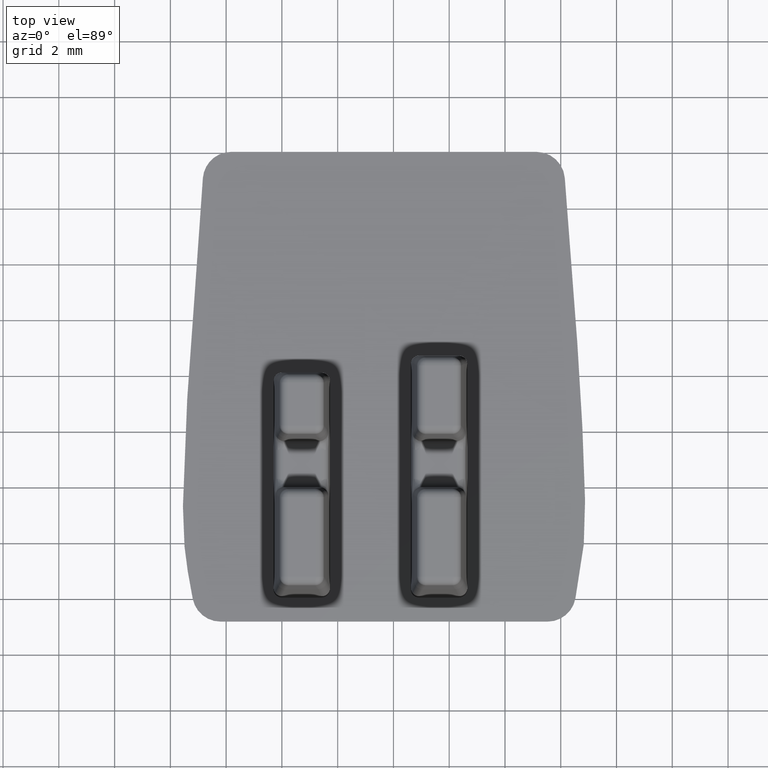
[diagram: clean part render]
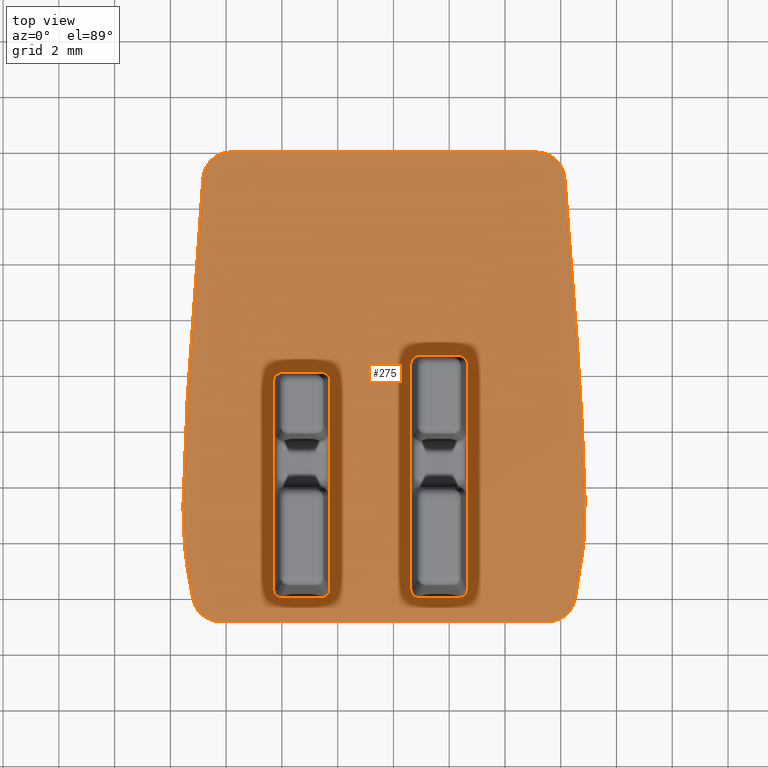
[diagram: same view with one face highlighted and labeled with its STEP entity id]
A machine part, top view. The second image highlights one B-rep face of the part: STEP entity #275.
In plain terms, the highlighted planar face has unit normal (0, 0, 1).
Its self-contained STEP definition (entity closure, byte-faithful):
#275 = ADVANCED_FACE ( 'NONE', ( #3682, #3700, #3684 ), #3679, .T. ) ;
#458 = EDGE_CURVE ( 'NONE', #3324, #3343, #5034, .T. ) ;
#462 = EDGE_CURVE ( 'NONE', #3326, #3351, #838, .T. ) ;
#463 = EDGE_CURVE ( 'NONE', #3373, #3345, #829, .T. ) ;
#465 = EDGE_CURVE ( 'NONE', #3368, #3372, #5041, .T. ) ;
#467 = EDGE_CURVE ( 'NONE', #3377, #3351, #5069, .T. ) ;
#471 = EDGE_CURVE ( 'NONE', #3334, #3353, #5042, .T. ) ;
#472 = EDGE_CURVE ( 'NONE', #3326, #3373, #5094, .T. ) ;
#473 = EDGE_CURVE ( 'NONE', #3338, #3374, #5043, .T. ) ;
#474 = EDGE_CURVE ( 'NONE', #3393, #3346, #5065, .T. ) ;
#476 = EDGE_CURVE ( 'NONE', #3324, #3358, #858, .T. ) ;
#478 = EDGE_CURVE ( 'NONE', #3377, #3360, #888, .T. ) ;
#479 = EDGE_CURVE ( 'NONE', #3325, #3340, #868, .T. ) ;
#480 = EDGE_CURVE ( 'NONE', #3345, #3325, #5048, .T. ) ;
#481 = EDGE_CURVE ( 'NONE', #3374, #3334, #875, .T. ) ;
#482 = EDGE_CURVE ( 'NONE', #3372, #3393, #854, .T. ) ;
#483 = EDGE_CURVE ( 'NONE', #3355, #3414, #865, .T. ) ;
#484 = EDGE_CURVE ( 'NONE', #3346, #3338, #536, .T. ) ;
#487 = EDGE_CURVE ( 'NONE', #3340, #3360, #5037, .T. ) ;
#488 = EDGE_CURVE ( 'NONE', #3339, #3343, #990, .T. ) ;
#490 = EDGE_CURVE ( 'NONE', #3394, #3368, #531, .T. ) ;
#491 = EDGE_CURVE ( 'NONE', #3323, #3359, #1026, .T. ) ;
#495 = EDGE_CURVE ( 'NONE', #3323, #3358, #5086, .T. ) ;
#496 = EDGE_CURVE ( 'NONE', #3414, #3359, #5077, .T. ) ;
#497 = EDGE_CURVE ( 'NONE', #3339, #3355, #5045, .T. ) ;
#498 = EDGE_CURVE ( 'NONE', #3353, #3394, #1045, .T. ) ;
#531 = B_SPLINE_CURVE_WITH_KNOTS ( 'NONE', 3,
 ( #1000, #971, #969, #1012, #966, #973, #1013, #1014, #986, #980, #992, #993, #1001, #972, #999, #1005, #1003, #1004, #1015, #968, #962, #963, #967, #989, #984, #988, #970, #975, #987, #976, #977, #978, #994, #982, #983, #996, #995, #1058, #1059, #1043, #1036, #1060, #1065, #1023, #1025, #1040, #1057, #1035, #1033, #1019, #1048, #1042, #1020, #1062, #1050, #1022, #1021, #1063, #1017, #1024 ),
 .UNSPECIFIED., .F., .F.,
 ( 4, 1, 1, 1, 1, 1, 1, 1, 2, 2, 1, 1, 1, 1, 1, 1, 2, 2, 1, 1, 1, 1, 1, 1, 2, 2, 1, 1, 1, 1, 1, 1, 2, 2, 1, 1, 1, 2, 2, 1, 1, 1, 1, 2, 2, 4 ),
 ( 0.0000000000000000000, 0.1249999999999861800, 0.1874999999999788200, 0.2187499999999751600, 0.2343749999999733000, 0.2421874999999720500, 0.2460937499999714400, 0.2480468749999714700, 0.2490234374999714400, 0.2499999999999714100, 0.3749999999999397100, 0.4374999999999236700, 0.4687499999999160100, 0.4843749999999120100, 0.4921874999999104600, 0.4960937499999094100, 0.4980468749999086800, 0.4999999999999079600, 0.5624999999998976400, 0.5937499999998922000, 0.6093749999998894200, 0.6171874999998878700, 0.6210937499998873100, 0.6230468749998869800, 0.6240234374998868700, 0.6249999999998868700, 0.6874999999998919800, 0.7187499999998945300, 0.7343749999998958600, 0.7421874999998970800, 0.7460937499998983000, 0.7480468749998995200, 0.7490234374998994100, 0.7499999999998993000, 0.7812499999999035200, 0.7968749999999056300, 0.8046874999999067400, 0.8085937499999069600, 0.8124999999999071900, 0.8437499999999092900, 0.8593749999999102900, 0.8671874999999108500, 0.8710937499999110700, 0.8730468749999119600, 0.8749999999999128500, 1.000000000000000000 ),
 .UNSPECIFIED. ) ;
#536 = B_SPLINE_CURVE_WITH_KNOTS ( 'NONE', 3,
 ( #855, #876, #908, #944, #924, #909, #938, #911, #913, #945, #951, #946, #943, #952, #910, #959, #905, #960, #906, #937, #933, #918, #932, #925, #939, #955, #940, #961, #927, #947, #935, #941, #928, #929, #953, #954, #903, #948, #912, #915, #916, #956, #914, #904, #949, #934, #950, #942, #917, #920, #926, #957, #958, #907, #919, #921, #922, #923, #931, #1011, #1007, #1008 ),
 .UNSPECIFIED., .F., .F.,
 ( 4, 1, 1, 1, 1, 1, 2, 2, 1, 1, 1, 1, 2, 2, 1, 1, 1, 1, 1, 2, 2, 1, 1, 1, 1, 1, 1, 1, 2, 2, 1, 1, 1, 1, 1, 1, 1, 1, 2, 2, 1, 1, 1, 1, 1, 2, 2, 4 ),
 ( 0.0000000000000000000, 0.06249999999996985700, 0.09374999999995511900, 0.1093749999999481400, 0.1171874999999446400, 0.1210937499999429100, 0.1230468749999424300, 0.1249999999999419600, 0.1562499999999477600, 0.1718749999999508400, 0.1796874999999524000, 0.1835937499999528200, 0.1855468749999533700, 0.1874999999999539300, 0.2187499999999739400, 0.2343749999999839300, 0.2421874999999889000, 0.2460937499999910600, 0.2480468749999920900, 0.2490234374999925300, 0.2499999999999930100, 0.3749999999999970000, 0.4374999999999988300, 0.4687499999999997200, 0.4843750000000000600, 0.4921875000000003300, 0.4960937500000001700, 0.4980468749999997800, 0.4990234374999997200, 0.4999999999999996700, 0.6249999999999307200, 0.6874999999998964200, 0.7187499999998793200, 0.7343749999998707700, 0.7421874999998665500, 0.7460937499998644400, 0.7480468749998633300, 0.7490234374998630000, 0.7495117187498630000, 0.7499999999998630000, 0.8124999999999050800, 0.8437499999999263900, 0.8593749999999369400, 0.8671874999999422700, 0.8710937499999447100, 0.8730468749999457100, 0.8749999999999468200, 1.000000000000000000 ),
 .UNSPECIFIED. ) ;
#780 = CARTESIAN_POINT ( 'NONE',  ( -235.6531696216744900, -11.63865870086176100, -36.24964550397224600 ) ) ;
#811 = CARTESIAN_POINT ( 'NONE',  ( -240.2714196216745100, -30.38405258776675000, -36.24964550397019300 ) ) ;
#815 = DIRECTION ( 'NONE',  ( -1.000000000000000000, 3.478821256213115200E-015, 1.405551522950329800E-030 ) ) ;
#821 = DIRECTION ( 'NONE',  ( -3.876322972433140000E-028, -1.110223024625280100E-013, -1.000000000000000000 ) ) ;
#825 = DIRECTION ( 'NONE',  ( -6.982962677686270700E-015, -1.000000000000000000, 1.110223024625280100E-013 ) ) ;
#828 = CARTESIAN_POINT ( 'NONE',  ( -238.3367214638940100, -11.94315870086171900, -36.24964550397224600 ) ) ;
#829 = LINE ( 'NONE', #811, #5093 ) ;
#834 = DIRECTION ( 'NONE',  ( -1.000000000000000000, 5.696957228166609000E-015, 0.0000000000000000000 ) ) ;
#836 = DIRECTION ( 'NONE',  ( 0.0000000000000000000, 0.0000000000000000000, 1.000000000000000000 ) ) ;
#838 = LINE ( 'NONE', #828, #5055 ) ;
#840 = DIRECTION ( 'NONE',  ( -3.876322972433140000E-028, -1.110223024625280100E-013, -1.000000000000000000 ) ) ;
#841 = CARTESIAN_POINT ( 'NONE',  ( -241.9969196216744900, -12.24765870086172000, -36.24964550397219700 ) ) ;
#847 = CARTESIAN_POINT ( 'NONE',  ( -244.2015433078549900, -19.80965362371724900, -36.24964550397354700 ) ) ;
#849 = DIRECTION ( 'NONE',  ( -1.000000000000000000, 5.696957228166609000E-015, 0.0000000000000000000 ) ) ;
#851 = DIRECTION ( 'NONE',  ( 1.000000000000000000, 0.0000000000000000000, 0.0000000000000000000 ) ) ;
#852 = CARTESIAN_POINT ( 'NONE',  ( -240.2714196216745100, -19.96165870086175100, -36.24964550397135100 ) ) ;
#853 = DIRECTION ( 'NONE',  ( -1.000000000000000000, 5.304548287884050300E-015, 0.0000000000000000000 ) ) ;
#854 = LINE ( 'NONE', #863, #5078 ) ;
#855 = CARTESIAN_POINT ( 'NONE',  ( -231.4764434864795000, -20.00816516961819900, -36.24964550397354700 ) ) ;
#858 = LINE ( 'NONE', #902, #5079 ) ;
#862 = CARTESIAN_POINT ( 'NONE',  ( -240.5759196216745000, -12.24765870086172000, -36.24964550397219700 ) ) ;
#863 = CARTESIAN_POINT ( 'NONE',  ( -244.2018409723065100, -20.82440870086169900, -36.24964550397354700 ) ) ;
#864 = DIRECTION ( 'NONE',  ( 1.000000000000000000, -7.098549276455460500E-015, 0.0000000000000000000 ) ) ;
#865 = LINE ( 'NONE', #930, #5062 ) ;
#866 = DIRECTION ( 'NONE',  ( 1.000000000000000000, 0.0000000000000000000, 0.0000000000000000000 ) ) ;
#868 = LINE ( 'NONE', #852, #5040 ) ;
#869 = DIRECTION ( 'NONE',  ( 0.0000000000000000000, 0.0000000000000000000, 1.000000000000000000 ) ) ;
#870 = CARTESIAN_POINT ( 'NONE',  ( -232.8665161004434800, -3.975408700879235400, -36.24964550397354700 ) ) ;
#871 = DIRECTION ( 'NONE',  ( 0.0000000000000000000, 0.0000000000000000000, 1.000000000000000000 ) ) ;
#872 = DIRECTION ( 'NONE',  ( 1.000000000000000000, 0.0000000000000000000, 0.0000000000000000000 ) ) ;
#873 = DIRECTION ( 'NONE',  ( -1.000000000000000000, 1.139391445633321800E-014, 0.0000000000000000000 ) ) ;
#874 = DIRECTION ( 'NONE',  ( -1.000000000000000000, 5.696957228166609000E-015, 0.0000000000000000000 ) ) ;
#875 = LINE ( 'NONE', #870, #5071 ) ;
#876 = CARTESIAN_POINT ( 'NONE',  ( -231.4044956740329400, -19.64816453552575800, -36.24964550397354700 ) ) ;
#878 = CARTESIAN_POINT ( 'NONE',  ( -242.3014196216744800, -30.38405258776675000, -36.24964550397019300 ) ) ;
#879 = CARTESIAN_POINT ( 'NONE',  ( -240.5759196216745000, -19.65715870086170000, -36.24964550397139400 ) ) ;
#880 = DIRECTION ( 'NONE',  ( -3.876322972433140000E-028, -1.110223024625280100E-013, -1.000000000000000000 ) ) ;
#885 = CARTESIAN_POINT ( 'NONE',  ( -232.4717702538434900, -19.80943656843785300, -36.24964550397354700 ) ) ;
#886 = DIRECTION ( 'NONE',  ( 0.0000000000000000000, 0.0000000000000000000, 1.000000000000000000 ) ) ;
#887 = DIRECTION ( 'NONE',  ( -1.000000000000000000, 1.253407780081204000E-014, -1.003929879447296100E-027 ) ) ;
#888 = LINE ( 'NONE', #878, #5070 ) ;
#889 = DIRECTION ( 'NONE',  ( -6.982962677686270700E-015, -1.000000000000000000, 1.110223024625280100E-013 ) ) ;
#894 = DIRECTION ( 'NONE',  ( -3.876322972433140000E-028, -1.110223024625280100E-013, -1.000000000000000000 ) ) ;
#895 = CARTESIAN_POINT ( 'NONE',  ( -232.8665732537919800, -4.990355615491250100, -36.24964550397354700 ) ) ;
#898 = CARTESIAN_POINT ( 'NONE',  ( -243.8218761596509700, -4.990408700879170200, -36.24964550397354700 ) ) ;
#899 = DIRECTION ( 'NONE',  ( -1.000000000000000000, 6.982962677686270700E-015, -3.876322972433140000E-028 ) ) ;
#901 = DIRECTION ( 'NONE',  ( 1.000000000000000000, 0.0000000000000000000, 0.0000000000000000000 ) ) ;
#902 = CARTESIAN_POINT ( 'NONE',  ( -238.3367214638935000, -11.33415870086176000, -36.24964550397229600 ) ) ;
#903 = CARTESIAN_POINT ( 'NONE',  ( -231.2985417314164600, -12.48200921731654100, -36.24964550397355400 ) ) ;
#904 = CARTESIAN_POINT ( 'NONE',  ( -231.5494857998496300, -8.852726751006827000, -36.24964550397353900 ) ) ;
#905 = CARTESIAN_POINT ( 'NONE',  ( -231.1265669032016200, -17.22093931266918100, -36.24964550397356100 ) ) ;
#906 = CARTESIAN_POINT ( 'NONE',  ( -231.1236098522109000, -17.07099215004015800, -36.24964550397354700 ) ) ;
#907 = CARTESIAN_POINT ( 'NONE',  ( -231.6791488461912800, -7.178297631104446600, -36.24964550397354700 ) ) ;
#908 = CARTESIAN_POINT ( 'NONE',  ( -231.3138084076095700, -19.14483560955518400, -36.24964550397355400 ) ) ;
#909 = CARTESIAN_POINT ( 'NONE',  ( -231.1943165593481800, -18.25765358336899200, -36.24964550397354700 ) ) ;
#910 = CARTESIAN_POINT ( 'NONE',  ( -231.1276891103008800, -17.26997632751585200, -36.24964550397354700 ) ) ;
#911 = CARTESIAN_POINT ( 'NONE',  ( -231.1855740830106900, -18.17450548377179600, -36.24964550397355400 ) ) ;
#912 = CARTESIAN_POINT ( 'NONE',  ( -231.3301486623427100, -11.95151107690991300, -36.24964550397354700 ) ) ;
#913 = CARTESIAN_POINT ( 'NONE',  ( -231.1838948224690300, -18.15802395513788200, -36.24964550397355400 ) ) ;
#914 = CARTESIAN_POINT ( 'NONE',  ( -231.5373758091472800, -9.012361806651899300, -36.24964550397353900 ) ) ;
#915 = CARTESIAN_POINT ( 'NONE',  ( -231.3862018922427200, -11.08916405157859800, -36.24964550397355400 ) ) ;
#916 = CARTESIAN_POINT ( 'NONE',  ( -231.4683890555185700, -9.938554433701467500, -36.24964550397354700 ) ) ;
#917 = CARTESIAN_POINT ( 'NONE',  ( -231.5613289319456700, -8.697367159496323600, -36.24964550397355400 ) ) ;
#918 = CARTESIAN_POINT ( 'NONE',  ( -231.1289435130762500, -16.41485394494217700, -36.24964550397354700 ) ) ;
#919 = CARTESIAN_POINT ( 'NONE',  ( -231.6935385215177200, -6.994121111255874500, -36.24964550397353900 ) ) ;
#920 = CARTESIAN_POINT ( 'NONE',  ( -231.5616607756324800, -8.693024517955896300, -36.24964550397355400 ) ) ;
#921 = CARTESIAN_POINT ( 'NONE',  ( -231.7009462987912500, -6.899352905562928100, -36.24964550397353900 ) ) ;
#922 = CARTESIAN_POINT ( 'NONE',  ( -231.7041666903964200, -6.858163686172666500, -36.24964550397355400 ) ) ;
#923 = CARTESIAN_POINT ( 'NONE',  ( -231.7063237581145400, -6.830576590113986800, -36.24964550397353900 ) ) ;
#924 = CARTESIAN_POINT ( 'NONE',  ( -231.2076347479177800, -18.37636828057633700, -36.24964550397355400 ) ) ;
#925 = CARTESIAN_POINT ( 'NONE',  ( -231.1316746419669000, -16.29642754496840200, -36.24964550397354700 ) ) ;
#926 = CARTESIAN_POINT ( 'NONE',  ( -231.5758415852974700, -8.507467347126997500, -36.24964550397355400 ) ) ;
#927 = CARTESIAN_POINT ( 'NONE',  ( -231.1794568777634400, -14.76961384670631900, -36.24964550397354700 ) ) ;
#928 = CARTESIAN_POINT ( 'NONE',  ( -231.2903700144432000, -12.62028733071779400, -36.24964550397354700 ) ) ;
#929 = CARTESIAN_POINT ( 'NONE',  ( -231.2947512830732300, -12.54590545924320500, -36.24964550397355400 ) ) ;
#930 = CARTESIAN_POINT ( 'NONE',  ( -235.3486696216745000, -19.96165870086199900, -36.24964550397135100 ) ) ;
#931 = CARTESIAN_POINT ( 'NONE',  ( -231.7075125010030400, -6.815374792754949100, -36.24964550397353900 ) ) ;
#932 = CARTESIAN_POINT ( 'NONE',  ( -231.1307144256909400, -16.33627472893267900, -36.24964550397355400 ) ) ;
#933 = CARTESIAN_POINT ( 'NONE',  ( -231.1259997675950600, -16.56755176928492500, -36.24964550397354700 ) ) ;
#934 = CARTESIAN_POINT ( 'NONE',  ( -231.5586830800823200, -8.732012405934868900, -36.24964550397354700 ) ) ;
#935 = CARTESIAN_POINT ( 'NONE',  ( -231.2650093346346700, -13.06286947957991500, -36.24964550397354700 ) ) ;
#936 = DIRECTION ( 'NONE',  ( -1.000000000000000000, 6.982962677686270700E-015, -3.876322972433140000E-028 ) ) ;
#937 = CARTESIAN_POINT ( 'NONE',  ( -231.1225045956256000, -16.85510498726542400, -36.24964550397355400 ) ) ;
#938 = CARTESIAN_POINT ( 'NONE',  ( -231.1881264744969800, -18.19929943379631300, -36.24964550397355400 ) ) ;
#939 = CARTESIAN_POINT ( 'NONE',  ( -231.1321021832211500, -16.27923069984952800, -36.24964550397355400 ) ) ;
#940 = CARTESIAN_POINT ( 'NONE',  ( -231.1325688023270000, -16.26073313962251300, -36.24964550397354700 ) ) ;
#941 = CARTESIAN_POINT ( 'NONE',  ( -231.2817398960363300, -12.76852120509763800, -36.24964550397353900 ) ) ;
#942 = CARTESIAN_POINT ( 'NONE',  ( -231.5608874523261700, -8.703145708173366300, -36.24964550397355400 ) ) ;
#943 = CARTESIAN_POINT ( 'NONE',  ( -231.1343037659119400, -17.47586465613678500, -36.24964550397353200 ) ) ;
#944 = CARTESIAN_POINT ( 'NONE',  ( -231.2380232005246200, -18.62182326723884900, -36.24964550397353900 ) ) ;
#945 = CARTESIAN_POINT ( 'NONE',  ( -231.1832247594121800, -18.15139496137746600, -36.24964550397354700 ) ) ;
#946 = CARTESIAN_POINT ( 'NONE',  ( -231.1479195952169900, -17.75021308127248800, -36.24964550397354700 ) ) ;
#947 = CARTESIAN_POINT ( 'NONE',  ( -231.2336669134797900, -13.64308813143487200, -36.24964550397355400 ) ) ;
#948 = CARTESIAN_POINT ( 'NONE',  ( -231.2989347227971800, -12.47540818278716700, -36.24964550397355400 ) ) ;
#949 = CARTESIAN_POINT ( 'NONE',  ( -231.5556063878898400, -8.772344621276779700, -36.24964550397353200 ) ) ;
#950 = CARTESIAN_POINT ( 'NONE',  ( -231.5602255257216200, -8.711811010644702000, -36.24964550397356100 ) ) ;
#951 = CARTESIAN_POINT ( 'NONE',  ( -231.1666379136270300, -17.98512003877985100, -36.24964550397356100 ) ) ;
#952 = CARTESIAN_POINT ( 'NONE',  ( -231.1295514034696100, -17.33861786655798900, -36.24964550397354700 ) ) ;
#953 = CARTESIAN_POINT ( 'NONE',  ( -231.2969584697447900, -12.50864828993472600, -36.24964550397354700 ) ) ;
#954 = CARTESIAN_POINT ( 'NONE',  ( -231.2979079538233100, -12.49266673875155900, -36.24964550397353900 ) ) ;
#955 = CARTESIAN_POINT ( 'NONE',  ( -231.1323907707225400, -16.26773958520077200, -36.24964550397355400 ) ) ;
#956 = CARTESIAN_POINT ( 'NONE',  ( -231.5136805692546300, -9.327115102681917200, -36.24964550397354700 ) ) ;
#957 = CARTESIAN_POINT ( 'NONE',  ( -231.6047354124054600, -8.133279787151261400, -36.24964550397353900 ) ) ;
#958 = CARTESIAN_POINT ( 'NONE',  ( -231.6520730124200900, -7.525211104652372600, -36.24964550397354700 ) ) ;
#959 = CARTESIAN_POINT ( 'NONE',  ( -231.1270011035256000, -17.24055463701507000, -36.24964550397355400 ) ) ;
#960 = CARTESIAN_POINT ( 'NONE',  ( -231.1263293814768900, -17.20946835119680100, -36.24964550397356100 ) ) ;
#961 = CARTESIAN_POINT ( 'NONE',  ( -231.1475193727385100, -15.67707316533020500, -36.24964550397353900 ) ) ;
#962 = CARTESIAN_POINT ( 'NONE',  ( -245.4313388584526800, -13.49220289778280200, -36.24964550397353900 ) ) ;
#963 = CARTESIAN_POINT ( 'NONE',  ( -245.4316667539268900, -13.49850826212904100, -36.24964550397354700 ) ) ;
#966 = CARTESIAN_POINT ( 'NONE',  ( -245.2029097322311200, -9.911352122496508000, -36.24964550397353900 ) ) ;
#967 = CARTESIAN_POINT ( 'NONE',  ( -245.4467396653799400, -13.78900121743152400, -36.24964550397355400 ) ) ;
#968 = CARTESIAN_POINT ( 'NONE',  ( -245.4305508876970500, -13.47707274547282300, -36.24964550397354700 ) ) ;
#969 = CARTESIAN_POINT ( 'NONE',  ( -245.1096820073992100, -8.664433783737449000, -36.24964550397355400 ) ) ;
#970 = CARTESIAN_POINT ( 'NONE',  ( -245.5008238510552900, -15.02324150273107500, -36.24964550397354700 ) ) ;
#971 = CARTESIAN_POINT ( 'NONE',  ( -245.0362977768240300, -7.714848355168002500, -36.24964550397355400 ) ) ;
#972 = CARTESIAN_POINT ( 'NONE',  ( -245.3284995973583000, -11.71102230612518000, -36.24964550397353900 ) ) ;
#973 = CARTESIAN_POINT ( 'NONE',  ( -245.2155147964803600, -10.08460049885322500, -36.24964550397356100 ) ) ;
#975 = CARTESIAN_POINT ( 'NONE',  ( -245.5030012213101400, -15.08073601111620800, -36.24964550397354700 ) ) ;
#976 = CARTESIAN_POINT ( 'NONE',  ( -245.5045358844706100, -15.12172019173994800, -36.24964550397353900 ) ) ;
#977 = CARTESIAN_POINT ( 'NONE',  ( -245.5048409659708000, -15.12990954065793800, -36.24964550397356100 ) ) ;
#978 = CARTESIAN_POINT ( 'NONE',  ( -245.5049299770194900, -15.13230001926311300, -36.24964550397355400 ) ) ;
#980 = CARTESIAN_POINT ( 'NONE',  ( -245.2264689747191000, -10.23662721000373700, -36.24964550397354700 ) ) ;
#982 = CARTESIAN_POINT ( 'NONE',  ( -245.5348286441031600, -15.99087123623198500, -36.24964550397354700 ) ) ;
#983 = CARTESIAN_POINT ( 'NONE',  ( -245.5450901881315500, -16.42275337761893900, -36.24964550397354700 ) ) ;
#984 = CARTESIAN_POINT ( 'NONE',  ( -245.4870573936624100, -14.67543414430442200, -36.24964550397354700 ) ) ;
#985 = DIRECTION ( 'NONE',  ( -1.000000000000000000, 1.139391445633321800E-014, 0.0000000000000000000 ) ) ;
#986 = CARTESIAN_POINT ( 'NONE',  ( -245.2258568316304100, -10.22809016876618800, -36.24964550397354700 ) ) ;
#987 = CARTESIAN_POINT ( 'NONE',  ( -245.5040773665113500, -15.10943254552099900, -36.24964550397354700 ) ) ;
#988 = CARTESIAN_POINT ( 'NONE',  ( -245.4963687911365200, -14.90784672765853200, -36.24964550397355400 ) ) ;
#989 = CARTESIAN_POINT ( 'NONE',  ( -245.4668294881681400, -14.20411684476006400, -36.24964550397355400 ) ) ;
#990 = LINE ( 'NONE', #1010, #5075 ) ;
#992 = CARTESIAN_POINT ( 'NONE',  ( -245.2268761348788100, -10.24230754680238100, -36.24964550397353900 ) ) ;
#993 = CARTESIAN_POINT ( 'NONE',  ( -245.2269443363721600, -10.24325869804296100, -36.24964550397355400 ) ) ;
#994 = CARTESIAN_POINT ( 'NONE',  ( -245.5189163352745800, -15.50899110486608200, -36.24964550397356100 ) ) ;
#995 = CARTESIAN_POINT ( 'NONE',  ( -245.5491538640342800, -16.68965377013128300, -36.24964550397354700 ) ) ;
#996 = CARTESIAN_POINT ( 'NONE',  ( -245.5481452560780200, -16.60611661201077300, -36.24964550397353900 ) ) ;
#997 = CARTESIAN_POINT ( 'NONE',  ( -241.9969196216744900, -19.65715870086170000, -36.24964550397139400 ) ) ;
#999 = CARTESIAN_POINT ( 'NONE',  ( -245.3842783109822100, -12.63541487682808300, -36.24964550397354700 ) ) ;
#1000 = CARTESIAN_POINT ( 'NONE',  ( -244.9797135297904700, -6.991482578573370100, -36.24964550397354700 ) ) ;
#1001 = CARTESIAN_POINT ( 'NONE',  ( -245.2704890368124800, -10.85119048592680000, -36.24964550397353900 ) ) ;
#1002 = DIRECTION ( 'NONE',  ( -3.876322972433140000E-028, -1.110223024625280100E-013, -1.000000000000000000 ) ) ;
#1003 = CARTESIAN_POINT ( 'NONE',  ( -245.4209059764650400, -13.29425856297818100, -36.24964550397354700 ) ) ;
#1004 = CARTESIAN_POINT ( 'NONE',  ( -245.4265767232342900, -13.40119494884677200, -36.24964550397355400 ) ) ;
#1005 = CARTESIAN_POINT ( 'NONE',  ( -245.4091925993741900, -13.07792502396406000, -36.24964550397354700 ) ) ;
#1006 = DIRECTION ( 'NONE',  ( 6.982962677686270700E-015, 1.000000000000000000, -1.110223024625280100E-013 ) ) ;
#1007 = CARTESIAN_POINT ( 'NONE',  ( -231.8200770233380600, -5.368270208030304900, -36.24964550397354700 ) ) ;
#1008 = CARTESIAN_POINT ( 'NONE',  ( -231.8545060922604900, -4.913953368818859200, -36.24964550397354700 ) ) ;
#1010 = CARTESIAN_POINT ( 'NONE',  ( -235.3486696216745000, -30.38405258776680300, -36.24964550397019300 ) ) ;
#1011 = CARTESIAN_POINT ( 'NONE',  ( -231.7714422631224200, -5.997887771923745800, -36.24964550397356800 ) ) ;
#1012 = CARTESIAN_POINT ( 'NONE',  ( -245.1751856981133800, -9.535222786837534800, -36.24964550397356100 ) ) ;
#1013 = CARTESIAN_POINT ( 'NONE',  ( -245.2215030904023900, -10.16752061416339700, -36.24964550397354700 ) ) ;
#1014 = CARTESIAN_POINT ( 'NONE',  ( -245.2244186778129100, -10.20805465360143700, -36.24964550397355400 ) ) ;
#1015 = CARTESIAN_POINT ( 'NONE',  ( -245.4293656111748300, -13.45435554587145100, -36.24964550397355400 ) ) ;
#1017 = CARTESIAN_POINT ( 'NONE',  ( -245.3205187569822700, -19.39130476258059200, -36.24964550397354700 ) ) ;
#1019 = CARTESIAN_POINT ( 'NONE',  ( -245.5272753819527900, -17.71075170337955000, -36.24964550397354700 ) ) ;
#1020 = CARTESIAN_POINT ( 'NONE',  ( -245.4779487591180800, -18.26952457860716800, -36.24964550397355400 ) ) ;
#1021 = CARTESIAN_POINT ( 'NONE',  ( -245.4647928878109400, -18.38470975683590700, -36.24964550397355400 ) ) ;
#1022 = CARTESIAN_POINT ( 'NONE',  ( -245.4660102005663300, -18.37434944743737100, -36.24964550397356800 ) ) ;
#1023 = CARTESIAN_POINT ( 'NONE',  ( -245.5495503820311000, -17.13280059698842500, -36.24964550397353900 ) ) ;
#1024 = CARTESIAN_POINT ( 'NONE',  ( -245.1966645184510000, -20.00830339445974800, -36.24964550397354700 ) ) ;
#1025 = CARTESIAN_POINT ( 'NONE',  ( -245.5433568626846200, -17.36344016076118600, -36.24964550397353900 ) ) ;
#1026 = LINE ( 'NONE', #1049, #5082 ) ;
#1029 = DIRECTION ( 'NONE',  ( -3.876322972433140000E-028, -1.110223024625280100E-013, -1.000000000000000000 ) ) ;
#1030 = CARTESIAN_POINT ( 'NONE',  ( -244.8343890226890100, -4.919396714687169800, -36.24964550397354700 ) ) ;
#1033 = CARTESIAN_POINT ( 'NONE',  ( -245.5348424308373000, -17.56475943986228600, -36.24964550397353200 ) ) ;
#1035 = CARTESIAN_POINT ( 'NONE',  ( -245.5355357129037100, -17.55072225057339400, -36.24964550397355400 ) ) ;
#1036 = CARTESIAN_POINT ( 'NONE',  ( -245.5497807718199100, -16.76236397634848200, -36.24964550397355400 ) ) ;
#1037 = DIRECTION ( 'NONE',  ( -2.202214785266719900E-014, -1.000000000000000000, 1.110223024625280100E-013 ) ) ;
#1039 = CARTESIAN_POINT ( 'NONE',  ( -237.0741696216750000, -19.65715870086194900, -36.24964550397139400 ) ) ;
#1040 = CARTESIAN_POINT ( 'NONE',  ( -245.5390744671201700, -17.47384784687558600, -36.24964550397354700 ) ) ;
#1042 = CARTESIAN_POINT ( 'NONE',  ( -245.4908731329821900, -18.14832063272174900, -36.24964550397354700 ) ) ;
#1043 = CARTESIAN_POINT ( 'NONE',  ( -245.5497427056932300, -16.75693030463648000, -36.24964550397354700 ) ) ;
#1045 = LINE ( 'NONE', #1030, #5051 ) ;
#1046 = DIRECTION ( 'NONE',  ( -3.876322972433140000E-028, -1.110223024625280100E-013, -1.000000000000000000 ) ) ;
#1047 = CARTESIAN_POINT ( 'NONE',  ( -237.0741696216744900, -11.63865870086174000, -36.24964550397224600 ) ) ;
#1048 = CARTESIAN_POINT ( 'NONE',  ( -245.5134731616036600, -17.90944554445594200, -36.24964550397354700 ) ) ;
#1049 = CARTESIAN_POINT ( 'NONE',  ( -237.3786696216749900, -30.38405258776680300, -36.24964550397019300 ) ) ;
#1050 = CARTESIAN_POINT ( 'NONE',  ( -245.4680499158270900, -18.35682431210224100, -36.24964550397354700 ) ) ;
#1051 = CARTESIAN_POINT ( 'NONE',  ( -235.6531696216744900, -19.65715870086194900, -36.24964550397139400 ) ) ;
#1052 = DIRECTION ( 'NONE',  ( -3.876322972433140000E-028, -1.110223024625280100E-013, -1.000000000000000000 ) ) ;
#1053 = DIRECTION ( 'NONE',  ( -1.000000000000000000, 5.696957228166609000E-015, 0.0000000000000000000 ) ) ;
#1054 = DIRECTION ( 'NONE',  ( -0.06996254797231030200, -0.9975496187564917300, 0.0000000000000000000 ) ) ;
#1055 = DIRECTION ( 'NONE',  ( -1.000000000000000000, 1.139391445633321800E-014, 0.0000000000000000000 ) ) ;
#1056 = DIRECTION ( 'NONE',  ( -1.000000000000000000, 1.139391445633321800E-014, 0.0000000000000000000 ) ) ;
#1057 = CARTESIAN_POINT ( 'NONE',  ( -245.5369850899014900, -17.52011283468775100, -36.24964550397354700 ) ) ;
#1058 = CARTESIAN_POINT ( 'NONE',  ( -245.5495284365082400, -16.72938623442267700, -36.24964550397354700 ) ) ;
#1059 = CARTESIAN_POINT ( 'NONE',  ( -245.5496832898690500, -16.74874343787616500, -36.24964550397353900 ) ) ;
#1060 = CARTESIAN_POINT ( 'NONE',  ( -245.5497859727424000, -16.76305795192318700, -36.24964550397353900 ) ) ;
#1062 = CARTESIAN_POINT ( 'NONE',  ( -245.4710804822975900, -18.33056815198800400, -36.24964550397353900 ) ) ;
#1063 = CARTESIAN_POINT ( 'NONE',  ( -245.4094513076222200, -18.85247373046204400, -36.24964550397355400 ) ) ;
#1065 = CARTESIAN_POINT ( 'NONE',  ( -245.5507940755578300, -16.91826807110780700, -36.24964550397356100 ) ) ;
#1148 = CARTESIAN_POINT ( 'NONE',  ( -237.3786696216744800, -11.63865870086158000, -36.24964550396614300 ) ) ;
#1158 = CARTESIAN_POINT ( 'NONE',  ( -241.9969196216744900, -11.94315870086170000, -36.24964550397354700 ) ) ;
#1159 = CARTESIAN_POINT ( 'NONE',  ( -235.6531696216744900, -19.96165870086195000, -36.24964550396614300 ) ) ;
#1161 = CARTESIAN_POINT ( 'NONE',  ( -237.3786696216744800, -19.65715870086194900, -36.24964550396614300 ) ) ;
#1165 = CARTESIAN_POINT ( 'NONE',  ( -235.3486696216745000, -11.63865870086176100, -36.24964550396614300 ) ) ;
#1168 = CARTESIAN_POINT ( 'NONE',  ( -240.2714196216745100, -19.65715870086170000, -36.24964550397354700 ) ) ;
#1170 = CARTESIAN_POINT ( 'NONE',  ( -242.3014196216744800, -19.65715870086170000, -36.24964550397354700 ) ) ;
#1173 = CARTESIAN_POINT ( 'NONE',  ( -244.8343890226890100, -4.919396714687169800, -36.24964550397354700 ) ) ;
#1174 = CARTESIAN_POINT ( 'NONE',  ( -237.0741696216744900, -11.33415870086176000, -36.24964550396614300 ) ) ;
#1182 = CARTESIAN_POINT ( 'NONE',  ( -240.5759196216745000, -19.96165870086175100, -36.24964550397354700 ) ) ;
#1184 = CARTESIAN_POINT ( 'NONE',  ( -241.9969196216744900, -19.96165870086169700, -36.24964550397354700 ) ) ;
#1190 = CARTESIAN_POINT ( 'NONE',  ( -245.1966645184510000, -20.00830339445974800, -36.24964550397354700 ) ) ;
#1195 = CARTESIAN_POINT ( 'NONE',  ( -235.6531696216744900, -11.33415870086195900, -36.24964550397229600 ) ) ;
#1196 = CARTESIAN_POINT ( 'NONE',  ( -240.5759196216745000, -11.94315870086171900, -36.24964550397354700 ) ) ;
#1201 = CARTESIAN_POINT ( 'NONE',  ( -243.8218761596509700, -3.975408700879180700, -36.24964550397354700 ) ) ;
#1207 = CARTESIAN_POINT ( 'NONE',  ( -235.3486696216745000, -19.65715870086194900, -36.24964550397354700 ) ) ;
#1210 = CARTESIAN_POINT ( 'NONE',  ( -231.8545060922604900, -4.913953368818859200, -36.24964550397354700 ) ) ;
#1211 = CARTESIAN_POINT ( 'NONE',  ( -231.4764434864795000, -20.00816516961819900, -36.24964550397354700 ) ) ;
#1223 = CARTESIAN_POINT ( 'NONE',  ( -244.2018409723065100, -20.82440870086169900, -36.24964550397354700 ) ) ;
#1225 = CARTESIAN_POINT ( 'NONE',  ( -237.0741696216750000, -19.96165870086195000, -36.24964550396614300 ) ) ;
#1227 = CARTESIAN_POINT ( 'NONE',  ( -244.9797135297904700, -6.991482578573370100, -36.24964550397354700 ) ) ;
#1253 = CARTESIAN_POINT ( 'NONE',  ( -232.8665161004434800, -3.975408700879240700, -36.24964550397354700 ) ) ;
#1255 = CARTESIAN_POINT ( 'NONE',  ( -242.3014196216744800, -12.24765870086172000, -36.24964550397219700 ) ) ;
#1266 = CARTESIAN_POINT ( 'NONE',  ( -232.4717361855345200, -20.82440870086180200, -36.24964550397354700 ) ) ;
#1268 = CARTESIAN_POINT ( 'NONE',  ( -240.2714196216745100, -12.24765870086172000, -36.24964550397354700 ) ) ;
#2668 = ORIENTED_EDGE ( 'NONE', *, *, #497, .T. ) ;
#2669 = ORIENTED_EDGE ( 'NONE', *, *, #483, .T. ) ;
#3323 = VERTEX_POINT ( 'NONE', #1148 ) ;
#3324 = VERTEX_POINT ( 'NONE', #1195 ) ;
#3325 = VERTEX_POINT ( 'NONE', #1182 ) ;
#3326 = VERTEX_POINT ( 'NONE', #1196 ) ;
#3334 = VERTEX_POINT ( 'NONE', #1201 ) ;
#3338 = VERTEX_POINT ( 'NONE', #1210 ) ;
#3339 = VERTEX_POINT ( 'NONE', #1207 ) ;
#3340 = VERTEX_POINT ( 'NONE', #1184 ) ;
#3343 = VERTEX_POINT ( 'NONE', #1165 ) ;
#3345 = VERTEX_POINT ( 'NONE', #1168 ) ;
#3346 = VERTEX_POINT ( 'NONE', #1211 ) ;
#3351 = VERTEX_POINT ( 'NONE', #1158 ) ;
#3353 = VERTEX_POINT ( 'NONE', #1173 ) ;
#3355 = VERTEX_POINT ( 'NONE', #1159 ) ;
#3358 = VERTEX_POINT ( 'NONE', #1174 ) ;
#3359 = VERTEX_POINT ( 'NONE', #1161 ) ;
#3360 = VERTEX_POINT ( 'NONE', #1170 ) ;
#3368 = VERTEX_POINT ( 'NONE', #1190 ) ;
#3372 = VERTEX_POINT ( 'NONE', #1223 ) ;
#3373 = VERTEX_POINT ( 'NONE', #1268 ) ;
#3374 = VERTEX_POINT ( 'NONE', #1253 ) ;
#3377 = VERTEX_POINT ( 'NONE', #1255 ) ;
#3393 = VERTEX_POINT ( 'NONE', #1266 ) ;
#3394 = VERTEX_POINT ( 'NONE', #1227 ) ;
#3414 = VERTEX_POINT ( 'NONE', #1225 ) ;
#3505 = EDGE_LOOP ( 'NONE', ( #3753, #3741, #3742, #3764, #3717, #3765, #3761, #3743, #3770 ) ) ;
#3521 = EDGE_LOOP ( 'NONE', ( #3751, #3757, #3744, #3730, #3750, #3749, #3771, #3745 ) ) ;
#3551 = EDGE_LOOP ( 'NONE', ( #3736, #3747, #3758, #3718, #3769, #3766, #2668, #2669 ) ) ;
#3679 = PLANE ( 'NONE',  #4880 ) ;
#3682 = FACE_OUTER_BOUND ( 'NONE', #3505, .T. ) ;
#3684 = FACE_BOUND ( 'NONE', #3551, .T. ) ;
#3689 = DIRECTION ( 'NONE',  ( 0.0000000000000000000, 0.0000000000000000000, 1.000000000000000000 ) ) ;
#3700 = FACE_BOUND ( 'NONE', #3521, .T. ) ;
#3709 = DIRECTION ( 'NONE',  ( 1.000000000000000000, 0.0000000000000000000, 0.0000000000000000000 ) ) ;
#3714 = CARTESIAN_POINT ( 'NONE',  ( -244.2015433078549900, -19.80965362371724900, -36.24964550397354700 ) ) ;
#3717 = ORIENTED_EDGE ( 'NONE', *, *, #473, .T. ) ;
#3718 = ORIENTED_EDGE ( 'NONE', *, *, #476, .F. ) ;
#3730 = ORIENTED_EDGE ( 'NONE', *, *, #478, .F. ) ;
#3736 = ORIENTED_EDGE ( 'NONE', *, *, #496, .T. ) ;
#3741 = ORIENTED_EDGE ( 'NONE', *, *, #482, .T. ) ;
#3742 = ORIENTED_EDGE ( 'NONE', *, *, #474, .T. ) ;
#3743 = ORIENTED_EDGE ( 'NONE', *, *, #498, .T. ) ;
#3744 = ORIENTED_EDGE ( 'NONE', *, *, #487, .T. ) ;
#3745 = ORIENTED_EDGE ( 'NONE', *, *, #463, .T. ) ;
#3747 = ORIENTED_EDGE ( 'NONE', *, *, #491, .F. ) ;
#3749 = ORIENTED_EDGE ( 'NONE', *, *, #462, .F. ) ;
#3750 = ORIENTED_EDGE ( 'NONE', *, *, #467, .T. ) ;
#3751 = ORIENTED_EDGE ( 'NONE', *, *, #480, .T. ) ;
#3753 = ORIENTED_EDGE ( 'NONE', *, *, #465, .T. ) ;
#3757 = ORIENTED_EDGE ( 'NONE', *, *, #479, .T. ) ;
#3758 = ORIENTED_EDGE ( 'NONE', *, *, #495, .T. ) ;
#3761 = ORIENTED_EDGE ( 'NONE', *, *, #471, .T. ) ;
#3764 = ORIENTED_EDGE ( 'NONE', *, *, #484, .T. ) ;
#3765 = ORIENTED_EDGE ( 'NONE', *, *, #481, .T. ) ;
#3766 = ORIENTED_EDGE ( 'NONE', *, *, #488, .F. ) ;
#3769 = ORIENTED_EDGE ( 'NONE', *, *, #458, .T. ) ;
#3770 = ORIENTED_EDGE ( 'NONE', *, *, #490, .T. ) ;
#3771 = ORIENTED_EDGE ( 'NONE', *, *, #472, .T. ) ;
#4880 = AXIS2_PLACEMENT_3D ( 'NONE', #3714, #3689, #3709 ) ;
#4981 = AXIS2_PLACEMENT_3D ( 'NONE', #780, #821, #834 ) ;
#5034 = CIRCLE ( 'NONE', #4981, 0.3045000000000130900 ) ;
#5037 = CIRCLE ( 'NONE', #5060, 0.3045000000000130900 ) ;
#5039 = AXIS2_PLACEMENT_3D ( 'NONE', #885, #871, #872 ) ;
#5040 = VECTOR ( 'NONE', #899, 1000.000000000000000 ) ;
#5041 = CIRCLE ( 'NONE', #5057, 1.014755120802346400 ) ;
#5042 = CIRCLE ( 'NONE', #5058, 1.015000000000015900 ) ;
#5043 = CIRCLE ( 'NONE', #5068, 1.014946916221198800 ) ;
#5045 = CIRCLE ( 'NONE', #5080, 0.3045000000000130900 ) ;
#5048 = CIRCLE ( 'NONE', #5076, 0.3045000000000130900 ) ;
#5051 = VECTOR ( 'NONE', #1054, 1000.000000000000100 ) ;
#5055 = VECTOR ( 'NONE', #815, 1000.000000000000000 ) ;
#5057 = AXIS2_PLACEMENT_3D ( 'NONE', #847, #836, #851 ) ;
#5058 = AXIS2_PLACEMENT_3D ( 'NONE', #898, #869, #901 ) ;
#5060 = AXIS2_PLACEMENT_3D ( 'NONE', #997, #1002, #985 ) ;
#5062 = VECTOR ( 'NONE', #936, 1000.000000000000000 ) ;
#5065 = CIRCLE ( 'NONE', #5039, 1.014972132995700700 ) ;
#5068 = AXIS2_PLACEMENT_3D ( 'NONE', #895, #886, #866 ) ;
#5069 = CIRCLE ( 'NONE', #5073, 0.3045000000000130900 ) ;
#5070 = VECTOR ( 'NONE', #889, 1000.000000000000000 ) ;
#5071 = VECTOR ( 'NONE', #853, 1000.000000000000000 ) ;
#5072 = AXIS2_PLACEMENT_3D ( 'NONE', #1047, #1029, #1053 ) ;
#5073 = AXIS2_PLACEMENT_3D ( 'NONE', #841, #840, #849 ) ;
#5075 = VECTOR ( 'NONE', #1006, 1000.000000000000000 ) ;
#5076 = AXIS2_PLACEMENT_3D ( 'NONE', #879, #894, #873 ) ;
#5077 = CIRCLE ( 'NONE', #5081, 0.3045000000000130900 ) ;
#5078 = VECTOR ( 'NONE', #864, 1000.000000000000000 ) ;
#5079 = VECTOR ( 'NONE', #887, 1000.000000000000000 ) ;
#5080 = AXIS2_PLACEMENT_3D ( 'NONE', #1051, #1052, #1056 ) ;
#5081 = AXIS2_PLACEMENT_3D ( 'NONE', #1039, #1046, #1055 ) ;
#5082 = VECTOR ( 'NONE', #1037, 1000.000000000000000 ) ;
#5086 = CIRCLE ( 'NONE', #5072, 0.3045000000000130900 ) ;
#5091 = AXIS2_PLACEMENT_3D ( 'NONE', #862, #880, #874 ) ;
#5093 = VECTOR ( 'NONE', #825, 1000.000000000000000 ) ;
#5094 = CIRCLE ( 'NONE', #5091, 0.3045000000000130900 ) ;